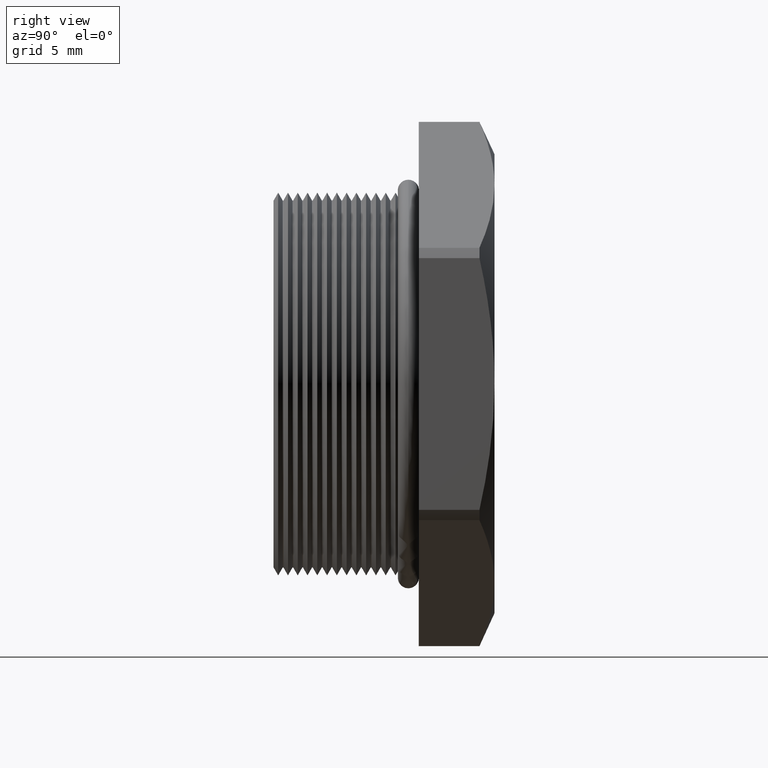
[diagram: clean part render]
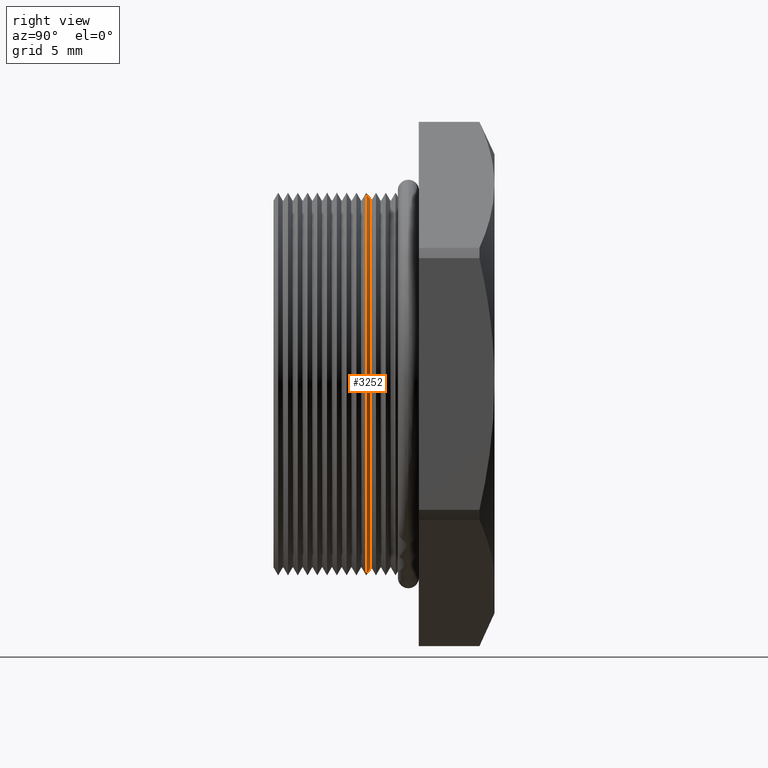
[diagram: same view with one face highlighted and labeled with its STEP entity id]
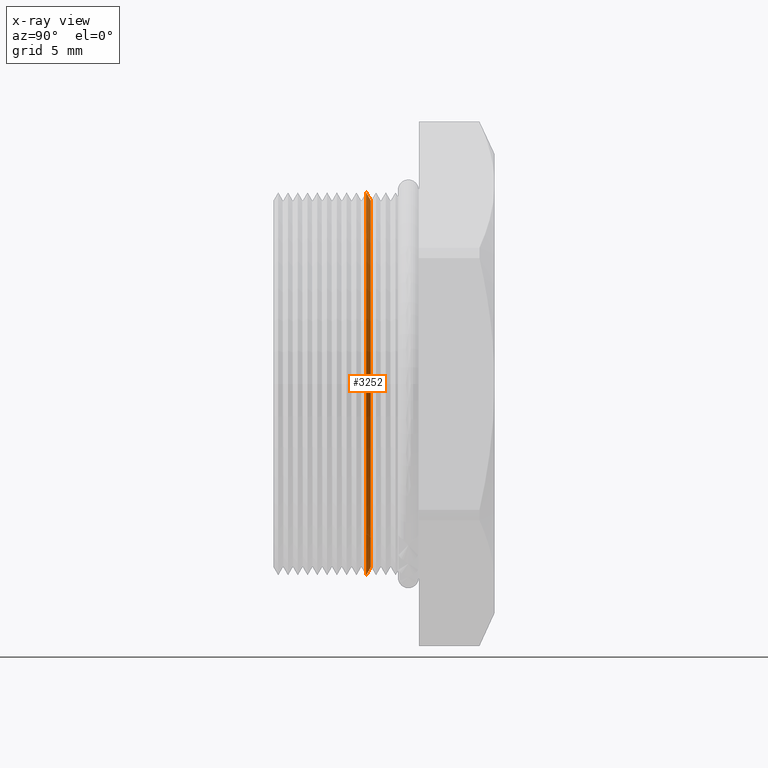
[diagram: x-ray of the same camera — body ghosted, the highlighted face saturated]
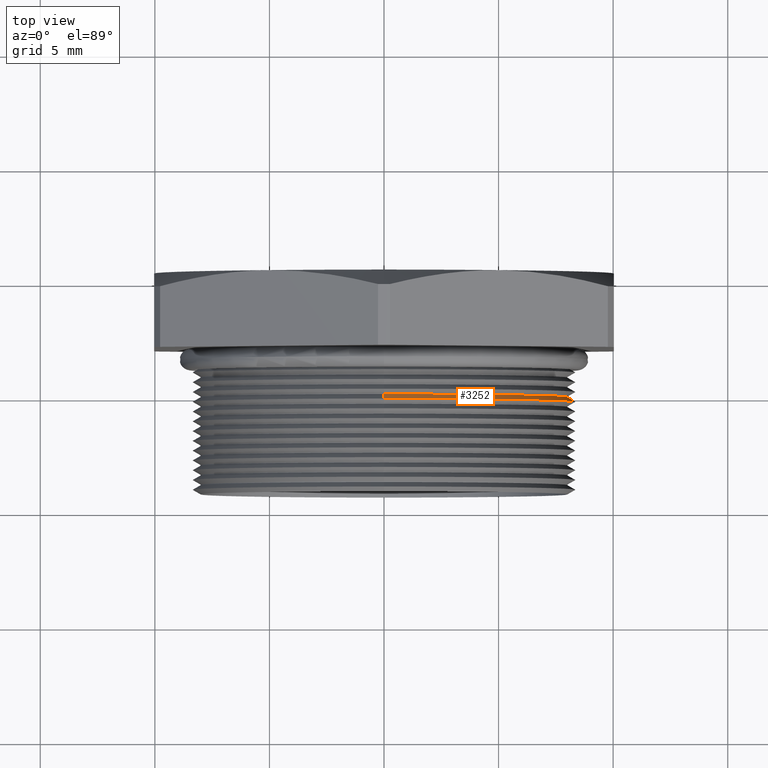
[diagram: same view with one face highlighted and labeled with its STEP entity id]
A machine part, right view. The second image highlights one B-rep face of the part: STEP entity #3252.
The next image is the same camera in x-ray: the body ghosted, the highlighted face saturated — about 0% of this face is hidden behind the body in this view.
A second angle (top view) of the same face is appended — the face is thin or edge-on in the first view.
In plain terms, the highlighted conical surface has half-angle 60 deg.
Its self-contained STEP definition (entity closure, byte-faithful):
#839 = DIRECTION ( 'NONE',  ( 0.0000000000000000000, -0.5000000000000008900, -0.8660254037844380400 ) ) ;
#840 = VECTOR ( 'NONE', #839, 39.37007874015748100 ) ;
#841 = CARTESIAN_POINT ( 'NONE',  ( 0.0000000000000000000, 0.1951072448100089300, -0.3150000000000000000 ) ) ;
#842 = LINE ( 'NONE', #841, #840 ) ;
#868 = CARTESIAN_POINT ( 'NONE',  ( 3.857637417314162700E-017, 0.1951072448100089300, 0.3150000000000000000 ) ) ;
#874 = DIRECTION ( 'NONE',  ( 1.060575238724906300E-016, -0.5000000000000008900, 0.8660254037844380400 ) ) ;
#875 = VECTOR ( 'NONE', #874, 39.37007874015748100 ) ;
#876 = CARTESIAN_POINT ( 'NONE',  ( 3.857637417314162700E-017, 0.1951072448100089300, 0.3150000000000000000 ) ) ;
#877 = LINE ( 'NONE', #876, #875 ) ;
#3249 = ORIENTED_EDGE ( 'NONE', *, *, #3255, .T. ) ;
#3250 = VERTEX_POINT ( 'NONE', #6255 ) ;
#3252 = ADVANCED_FACE ( 'NONE', ( #6249 ), #6247, .T. ) ;
#3254 = EDGE_LOOP ( 'NONE', ( #3249, #3348, #3353, #3352 ) ) ;
#3255 = EDGE_CURVE ( 'NONE', #3250, #3356, #6239, .T. ) ;
#3262 = EDGE_CURVE ( 'NONE', #3265, #3270, #6286, .T. ) ;
#3265 = VERTEX_POINT ( 'NONE', #6277 ) ;
#3270 = VERTEX_POINT ( 'NONE', #6276 ) ;
#3336 = EDGE_CURVE ( 'NONE', #3250, #3270, #842, .T. ) ;
#3348 = ORIENTED_EDGE ( 'NONE', *, *, #3349, .T. ) ;
#3349 = EDGE_CURVE ( 'NONE', #3356, #3265, #877, .T. ) ;
#3352 = ORIENTED_EDGE ( 'NONE', *, *, #3336, .F. ) ;
#3353 = ORIENTED_EDGE ( 'NONE', *, *, #3262, .T. ) ;
#3356 = VERTEX_POINT ( 'NONE', #868 ) ;
#6235 = DIRECTION ( 'NONE',  ( 0.0000000000000000000, 0.0000000000000000000, -1.000000000000000000 ) ) ;
#6236 = DIRECTION ( 'NONE',  ( 0.0000000000000000000, -1.000000000000000000, 0.0000000000000000000 ) ) ;
#6237 = CARTESIAN_POINT ( 'NONE',  ( 0.0000000000000000000, 0.1951072448100089300, 0.0000000000000000000 ) ) ;
#6238 = AXIS2_PLACEMENT_3D ( 'NONE', #6237, #6236, #6235 ) ;
#6239 = CIRCLE ( 'NONE', #6238, 0.3150000000000000000 ) ;
#6244 = DIRECTION ( 'NONE',  ( 0.0000000000000000000, 0.0000000000000000000, -1.000000000000000000 ) ) ;
#6245 = DIRECTION ( 'NONE',  ( 0.0000000000000000000, -1.000000000000000000, 0.0000000000000000000 ) ) ;
#6246 = AXIS2_PLACEMENT_3D ( 'NONE', #6248, #6245, #6244 ) ;
#6247 = CONICAL_SURFACE ( 'NONE', #6246, 0.3150000000000000000, 1.047197551196596700 ) ;
#6248 = CARTESIAN_POINT ( 'NONE',  ( 0.0000000000000000000, 0.1951072448100089300, 0.0000000000000000000 ) ) ;
#6249 = FACE_OUTER_BOUND ( 'NONE', #3254, .T. ) ;
#6255 = CARTESIAN_POINT ( 'NONE',  ( 0.0000000000000000000, 0.1951072448100089300, -0.3150000000000000000 ) ) ;
#6276 = CARTESIAN_POINT ( 'NONE',  ( 0.0000000000000000000, 0.1871548905829479900, -0.3287738815610546400 ) ) ;
#6277 = CARTESIAN_POINT ( 'NONE',  ( 4.026318816969966200E-017, 0.1871548905829479900, 0.3287738815610546400 ) ) ;
#6282 = DIRECTION ( 'NONE',  ( 0.0000000000000000000, 0.0000000000000000000, 1.000000000000000000 ) ) ;
#6283 = DIRECTION ( 'NONE',  ( -0.0000000000000000000, 1.000000000000000000, -0.0000000000000000000 ) ) ;
#6284 = CARTESIAN_POINT ( 'NONE',  ( 0.0000000000000000000, 0.1871548905829479900, 0.0000000000000000000 ) ) ;
#6285 = AXIS2_PLACEMENT_3D ( 'NONE', #6284, #6283, #6282 ) ;
#6286 = CIRCLE ( 'NONE', #6285, 0.3287738815610546400 ) ;